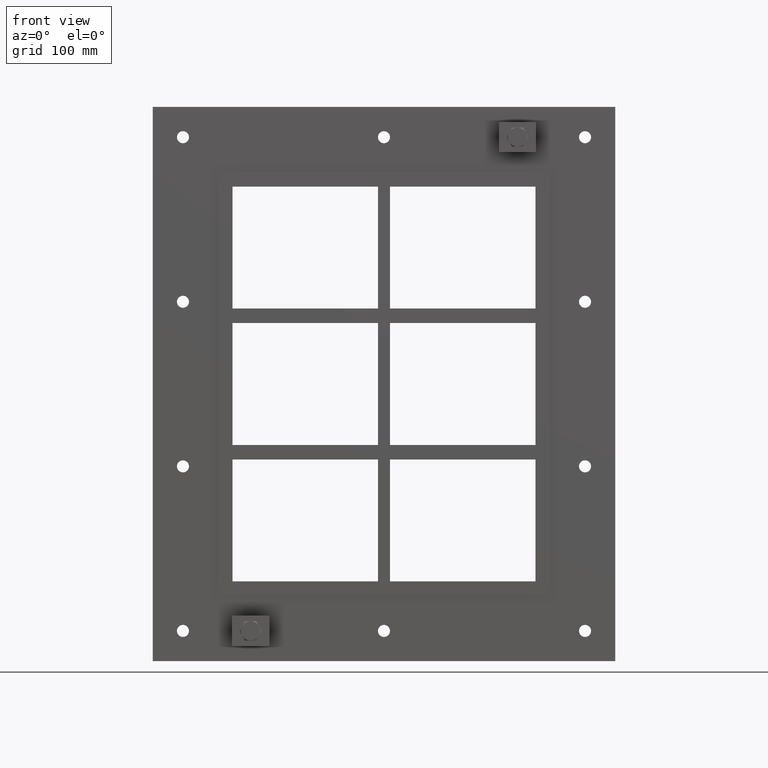
[diagram: clean part render]
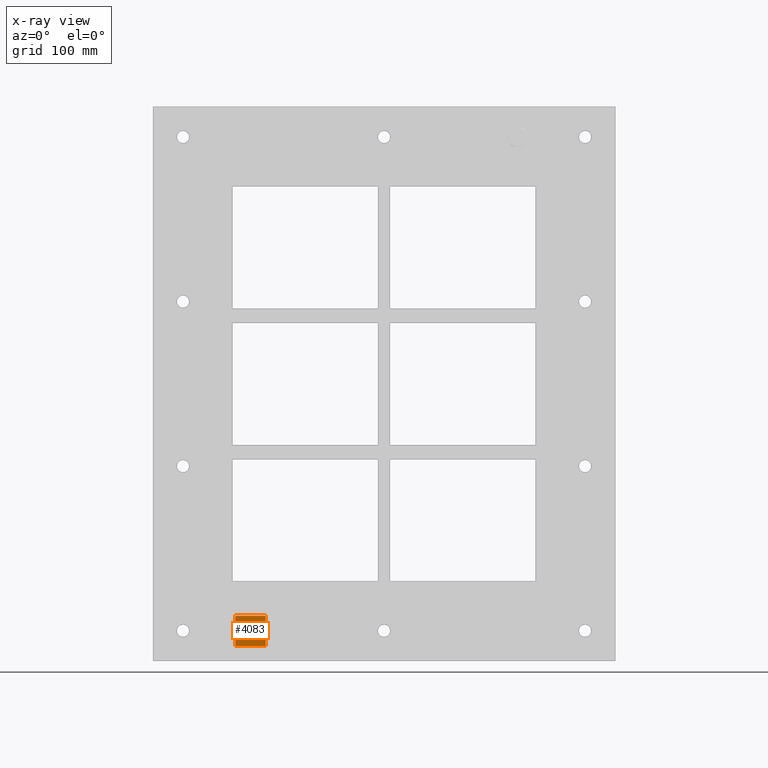
[diagram: x-ray — body ghosted, one internal face saturated and labeled with its STEP entity id]
A machine part, front view, then the same camera in x-ray: the body is ghosted and one INTERNAL B-rep face — a face not visible from any outside direction — is saturated and labeled: STEP entity #4083.
In plain terms, the highlighted planar face has unit normal (0, 1, 0).
Its self-contained STEP definition (entity closure, byte-faithful):
#3938=CARTESIAN_POINT('',(-122.99999999999997,0.0,-217.00000000000011));
#3939=VERTEX_POINT('',#3938);
#3940=CARTESIAN_POINT('',(-122.99999999999997,0.0,-192.0));
#3941=VERTEX_POINT('',#3940);
#3942=CARTESIAN_POINT('',(-122.99999999999997,0.0,-217.00000000000011));
#3943=DIRECTION('',(0.0,0.0,1.0));
#3944=VECTOR('',#3943,25.000000000000114);
#3945=LINE('',#3942,#3944);
#3946=EDGE_CURVE('',#3939,#3941,#3945,.T.);
#3978=CARTESIAN_POINT('',(-98.000000000000043,0.0,-192.0));
#3979=VERTEX_POINT('',#3978);
#3980=CARTESIAN_POINT('',(-122.99999999999997,0.0,-192.0));
#3981=DIRECTION('',(1.0,0.0,0.0));
#3982=VECTOR('',#3981,24.999999999999929);
#3983=LINE('',#3980,#3982);
#3984=EDGE_CURVE('',#3941,#3979,#3983,.T.);
#4009=CARTESIAN_POINT('',(-98.000000000000043,0.0,-217.00000000000011));
#4010=VERTEX_POINT('',#4009);
#4011=CARTESIAN_POINT('',(-98.000000000000043,0.0,-192.0));
#4012=DIRECTION('',(0.0,0.0,-1.0));
#4013=VECTOR('',#4012,25.000000000000114);
#4014=LINE('',#4011,#4013);
#4015=EDGE_CURVE('',#3979,#4010,#4014,.T.);
#4040=CARTESIAN_POINT('',(-98.000000000000043,0.0,-217.00000000000011));
#4041=DIRECTION('',(-1.0,0.0,0.0));
#4042=VECTOR('',#4041,24.999999999999929);
#4043=LINE('',#4040,#4042);
#4044=EDGE_CURVE('',#4010,#3939,#4043,.T.);
#4072=CARTESIAN_POINT('',(-110.5,0.0,-204.50000000000003));
#4073=DIRECTION('',(0.0,1.0,0.0));
#4074=DIRECTION('',(0.0,0.0,1.0));
#4075=AXIS2_PLACEMENT_3D('',#4072,#4073,#4074);
#4076=PLANE('',#4075);
#4077=ORIENTED_EDGE('',*,*,#4044,.T.);
#4078=ORIENTED_EDGE('',*,*,#3946,.T.);
#4079=ORIENTED_EDGE('',*,*,#3984,.T.);
#4080=ORIENTED_EDGE('',*,*,#4015,.T.);
#4081=EDGE_LOOP('',(#4077,#4078,#4079,#4080));
#4082=FACE_OUTER_BOUND('',#4081,.T.);
#4083=ADVANCED_FACE('',(#4082),#4076,.T.);